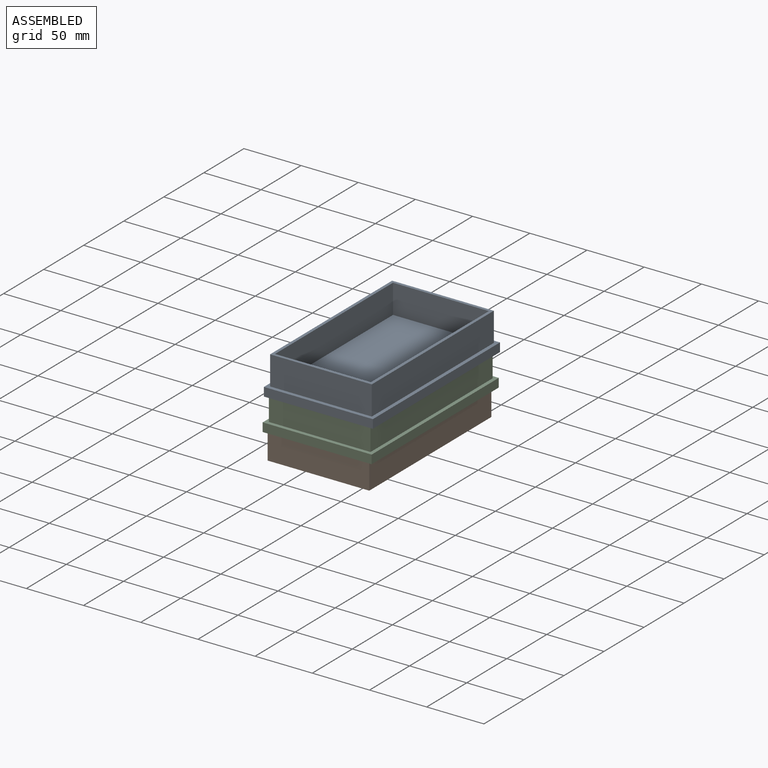
[diagram: assembled view]
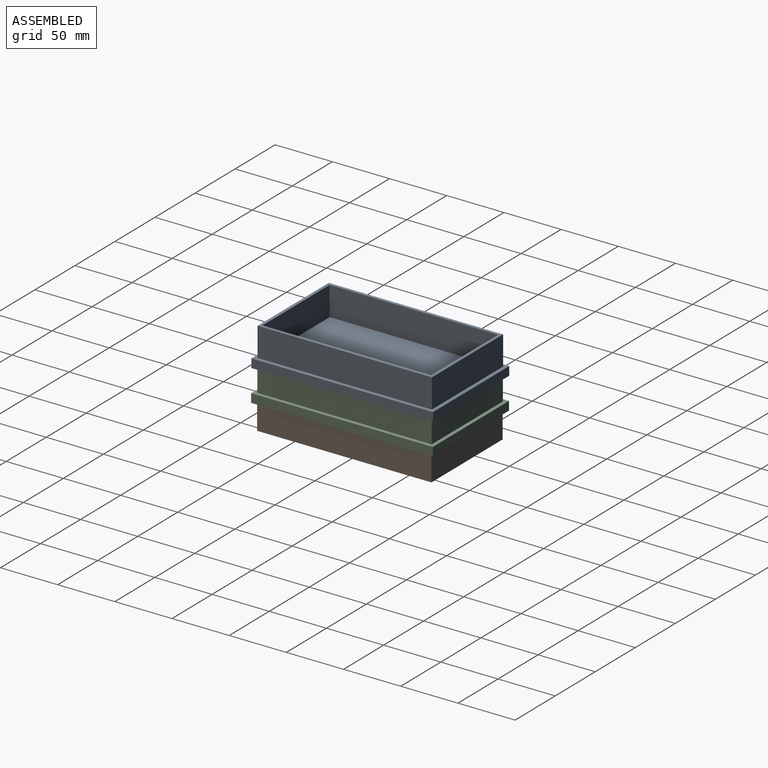
[diagram: assembled view, second angle]
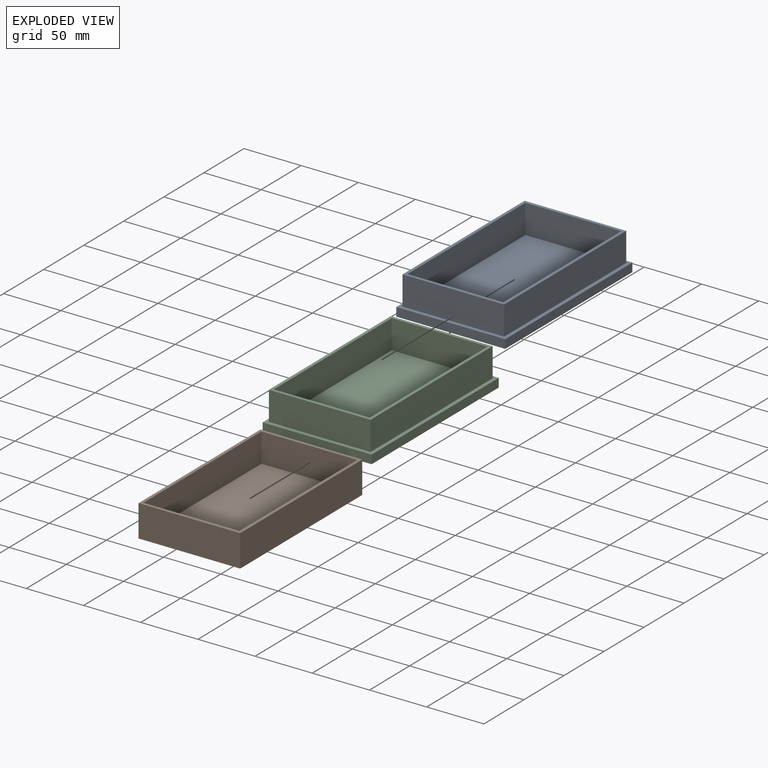
[diagram: exploded view]
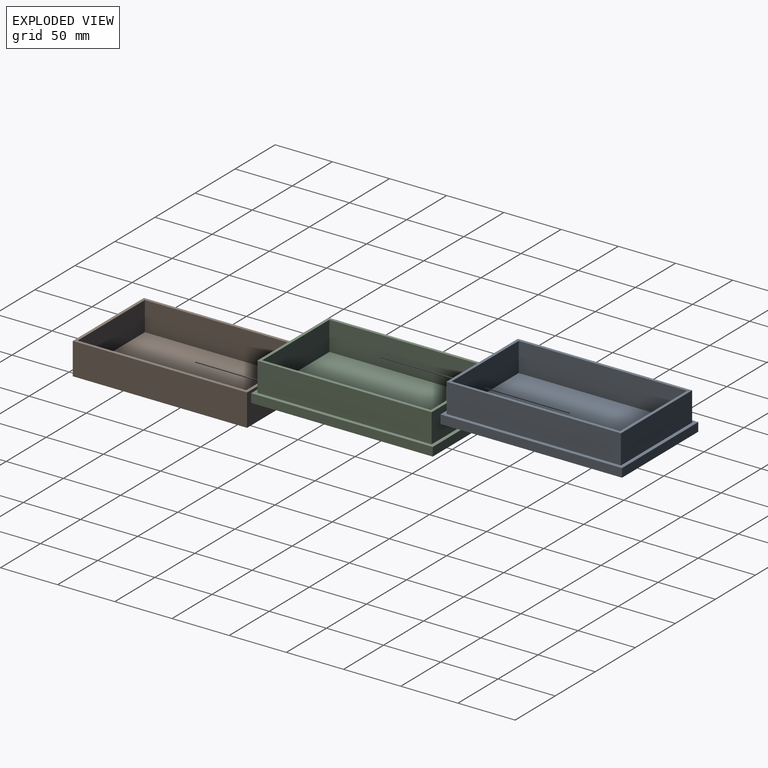
[diagram: exploded view, second angle]
ASSEMBLY  parts=3 mates=6
PART A: 21 faces, bbox 158.8x95.3x33 mm
  f0: plane 152.4x25.4mm, normal (0,-1,0), area 3871mm2, adj f1,f7,f8,f13
  f1: plane 88.9x25.4mm, normal (1,0,0), area 2258.1mm2, adj f0,f2,f8,f13
  f2: plane 152.4x25.4mm, normal (0,1,0), area 3871mm2, adj f1,f7,f8,f13
  f3: plane 83.82x25.4mm, normal (1,0,0), area 2129mm2, adj f4,f6,f8,f14
  f4: plane 147.32x25.4mm, normal (0,-1,0), area 3741.9mm2, adj f3,f5,f8,f14
  f5: plane 83.82x25.4mm, normal (-1,0,0), area 2129mm2, adj f4,f6,f8,f14
  f6: plane 147.32x25.4mm, normal (0,1,0), area 3741.9mm2, adj f3,f5,f8,f14
  f7: plane 88.9x25.4mm, normal (-1,0,0), area 2258.1mm2, adj f0,f2,f8,f13
  f8: plane 152.4x88.9mm, normal (0,0,1), area 1200mm2, adj f0,f1,f2,f3,f4,f5,f6,f7
  f9: plane 95.25x7.62mm, normal (-1,0,0), area 725.8mm2, adj f10,f12,f13,f19
  f10: plane 158.75x7.62mm, normal (0,-1,0), area 1209.7mm2, adj f9,f11,f13,f19
  f11: plane 95.25x7.62mm, normal (1,0,0), area 725.8mm2, adj f10,f12,f13,f19
  f12: plane 158.75x7.62mm, normal (0,1,0), area 1209.7mm2, adj f9,f11,f13,f19
  f13: plane 158.75x95.25mm, normal (0,0,1), area 1572.6mm2, adj f0,f1,f2,f7,f9,f10,f11,f12
  f14: plane 147.32x83.82mm, normal (0,0,1), area 12348.4mm2, adj f3,f4,f5,f6
  f15: plane 90.17x5.08mm, normal (1,0,0), area 458.1mm2, adj f16,f18,f19,f20
  f16: plane 153.67x5.08mm, normal (0,1,0), area 780.6mm2, adj f15,f17,f19,f20
  f17: plane 90.17x5.08mm, normal (-1,0,0), area 458.1mm2, adj f16,f18,f19,f20
  f18: plane 153.67x5.08mm, normal (0,-1,0), area 780.6mm2, adj f15,f17,f19,f20
  f19: plane 158.75x95.25mm, normal (0,0,-1), area 1264.5mm2, adj f9,f10,f11,f12,f15,f16,f17,f18
  f20: plane 153.67x90.17mm, normal (0,0,-1), area 13856.4mm2, adj f15,f16,f17,f18
PART B: 11 faces, bbox 88.9x152.4x27.9 mm
  f0: plane 88.9x27.94mm, normal (0,1,0), area 2483.9mm2, adj f1,f7,f8,f10
  f1: plane 152.4x27.94mm, normal (-1,0,0), area 4258.1mm2, adj f0,f2,f8,f10
  f2: plane 88.9x27.94mm, normal (0,-1,0), area 2483.9mm2, adj f1,f7,f8,f10
  f3: plane 147.32x25.4mm, normal (1,0,0), area 3741.9mm2, adj f4,f6,f8,f9
  f4: plane 83.82x25.4mm, normal (0,-1,0), area 2129mm2, adj f3,f5,f8,f9
  f5: plane 147.32x25.4mm, normal (-1,0,0), area 3741.9mm2, adj f4,f6,f8,f9
  f6: plane 83.82x25.4mm, normal (0,1,0), area 2129mm2, adj f3,f5,f8,f9
  f7: plane 152.4x27.94mm, normal (1,0,0), area 4258.1mm2, adj f0,f2,f8,f10
  f8: plane 152.4x88.9mm, normal (0,0,1), area 1200mm2, adj f0,f1,f2,f3,f4,f5,f6,f7
  f9: plane 147.32x83.82mm, normal (0,0,1), area 12348.4mm2, adj f3,f4,f5,f6
  f10: plane 152.4x88.9mm, normal (0,0,-1), area 13548.4mm2, adj f0,f1,f2,f7
PART C: same geometry as A
PLACE A rot(axis=(0,0,-1),90deg) t=(22.25,-177.43,38.68)mm
PLACE B t=(109.88,-26.3,-17.2)mm fixed
PLACE C rot(axis=(0,0,-1),90deg) t=(21.62,-178.06,10.74)mm
MATE planar C.f17 <-> B.f2  axis (0,1,0) through (66.07,-178.7,5.66)mm
MATE planar B.f1 <-> C.f16  axis (-1,0,0) through (20.98,-102.5,-5.77)mm
MATE planar C.f20 <-> B.f8  axis (0,0,-1) through (66.07,-25.03,8.2)mm
MATE planar A.f17 <-> C.f1  axis (0,1,0) through (66.7,-178.06,33.6)mm
MATE planar C.f0 <-> A.f16  axis (-1,0,0) through (21.62,-101.86,23.44)mm
MATE planar A.f20 <-> C.f8  axis (0,0,-1) through (66.7,-101.23,36.14)mm
